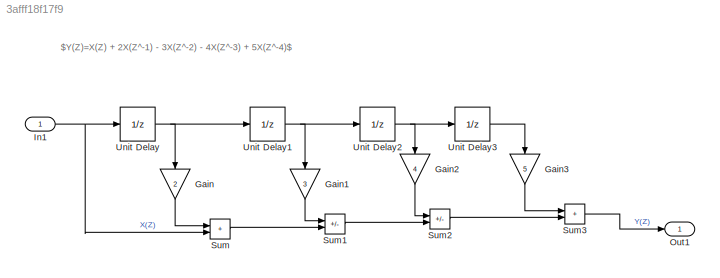
MODEL slx_3afff18f17f9
KIND model
CONFIG AbsTol = auto
CONFIG EnableMultiTasking = off
CONFIG FixedStep = 0.1
CONFIG MaxStep = auto
CONFIG MinStep = auto
CONFIG RelTol = 1e-3
CONFIG SampleTimeConstraint = Unconstrained
CONFIG SolverName = FixedStepAuto
CONFIG StartTime = 0.0
CONFIG StopTime = 10.0
BLOCK [Gain] Gain
  Gain = 2
  NameLocation = left
BLOCK [Gain] Gain1
  Gain = 3
  NameLocation = left
BLOCK [Gain] Gain2
  Gain = 4
  NameLocation = left
BLOCK [Gain] Gain3
  Gain = 5
  NameLocation = left
BLOCK [Inport] In1
  OutDataTypeStr = double
  PortDimensions = [1 1]
  SampleTime = [0.10000000000000001,0]
  SamplingMode = Sample based
  SignalType = real
BLOCK [Outport] Out1
  OutDataTypeStr = double
  PortDimensions = [1 1]
  SampleTime = [0.10000000000000001,0]
  SamplingMode = Sample based
  SignalType = real
BLOCK [Sum] Sum
  IconShape = rectangular
  Ports = [2, 1]
BLOCK [Sum] Sum1
  IconShape = rectangular
  Inputs = -+
  Ports = [2, 1]
BLOCK [Sum] Sum2
  IconShape = rectangular
  Inputs = -+
  Ports = [2, 1]
BLOCK [Sum] Sum3
  IconShape = rectangular
  Ports = [2, 1]
BLOCK [UnitDelay] Unit Delay
  HasFrameUpgradeWarning = on
  SampleTime = -1
BLOCK [UnitDelay] Unit Delay1
  HasFrameUpgradeWarning = on
  SampleTime = -1
BLOCK [UnitDelay] Unit Delay2
  HasFrameUpgradeWarning = on
  SampleTime = -1
BLOCK [UnitDelay] Unit Delay3
  HasFrameUpgradeWarning = on
  SampleTime = -1
ANNOTATION (root): $Y(Z)=X(Z) + 2X(Z^-1) - 3X(Z^-2) - 4X(Z^-3) + 5X(Z^-4)$
LINE Gain1:1 -> Sum1:1
LINE Gain2:1 -> Sum2:1
LINE Gain3:1 -> Sum3:1
LINE Gain:1 -> Sum:1
NET In1:1 -> Sum:2, Unit Delay:1
LINE Sum1:1 -> Sum2:2
LINE Sum2:1 -> Sum3:2
LINE Sum3:1 -> Out1:1
LINE Sum:1 -> Sum1:2
NET Unit Delay1:1 -> Gain1:1, Unit Delay2:1
NET Unit Delay2:1 -> Gain2:1, Unit Delay3:1
LINE Unit Delay3:1 -> Gain3:1
NET Unit Delay:1 -> Gain:1, Unit Delay1:1
note: NET lines group one-source signal fan-out (src -> all destinations, sorted); 1:1 wires keep LINE
